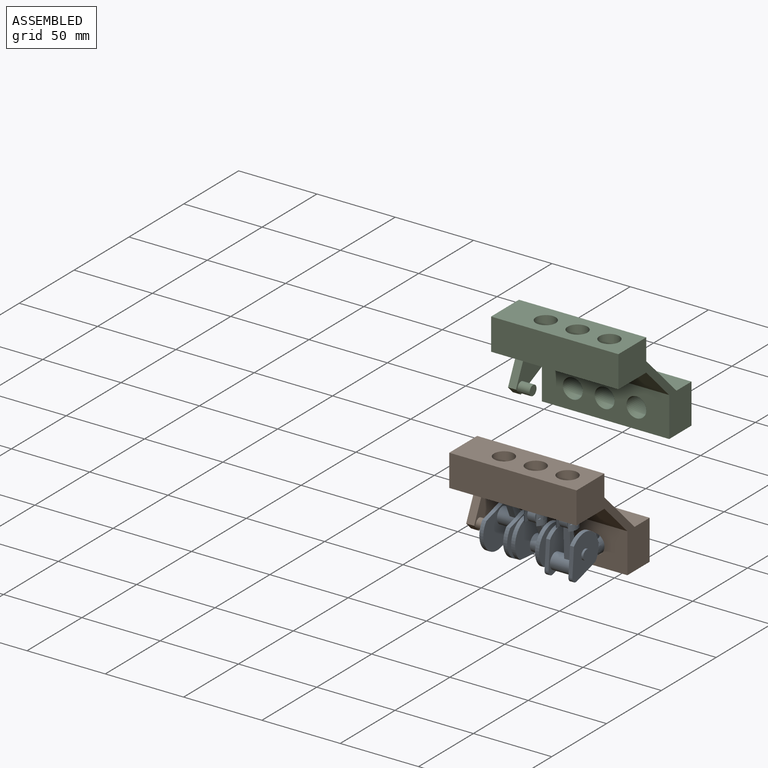
[diagram: assembled view]
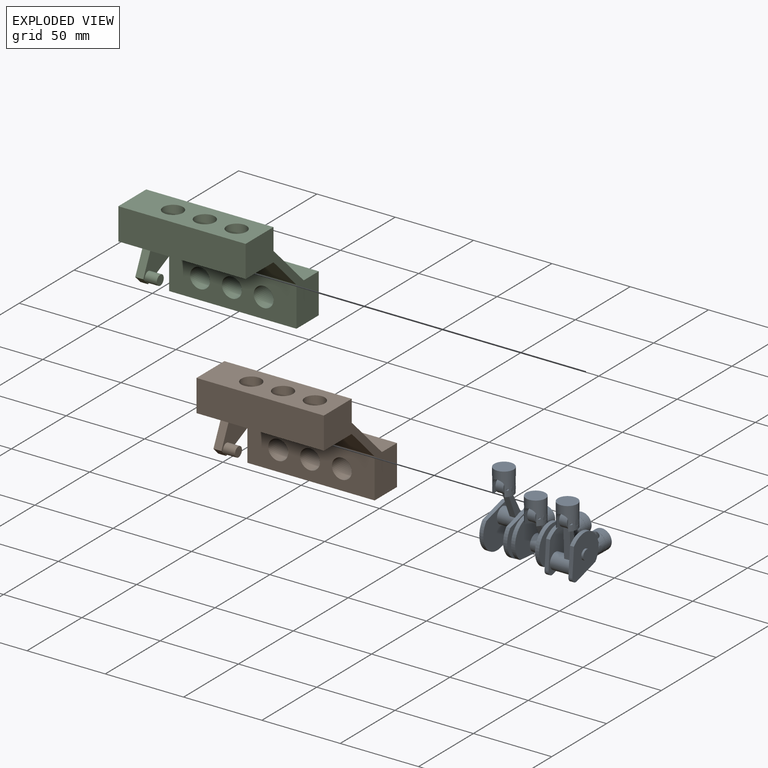
[diagram: exploded view]
GUIDED TOUR — MATED ASSEMBLY WITH SUBASSEMBLIES (Onshape document 8149db686804dba860535233, AutoMate assembly 8149db686804dba860535233_c2453fa3158c593c69a147f7_6c1d80d9578c346a1d70da86_default)

This assembly has 26 component occurrences arranged in 3 top-level units: 2 individual components plus 1 subassembly (S0). The tour has two levels: first the top level, where each subassembly is treated as one rigid unit; then each subassembly is toured internally in its own section (nesting deeper than one subassembly level is flattened into its subassembly's section).

Components are labeled P0..P25 across the whole record; subassembly units are labeled S0..S0. A mate is a constraint between two units; its type names the relative motion it leaves free:
  CYLINDRICAL — leaves both rotation about and translation along the listed axis free,
  FASTENED — locks the two components together rigidly (no relative motion),
  REVOLUTE — leaves rotation about the listed axis free (a hinge),
  SLIDER — leaves translation along the listed axis free.
Axis/direction vectors are unit vectors and 'through' points are millimeter coordinates, both in the assembly's world frame.

TOP-LEVEL MATES (between units; each subassembly's internal mates are listed in its own section)
  1. CYLINDRICAL "Cylindrical 1": P7 <-> S0, axis (1.000, 0.000, 0.000) through (-11.14, -75.00, -70.00) mm
  2. SLIDER "Slider 5": S0 <-> P7, axis (0.000, -1.000, 0.000) through (16.11, -31.24, -77.07) mm
  3. SLIDER "Slider 6": S0 <-> P7, axis (0.000, -1.000, 0.000) through (36.43, -46.98, -77.07) mm
  4. SLIDER "Slider 4": S0 <-> P7, axis (0.000, -1.000, 0.000) through (-4.21, -40.53, -77.07) mm
  5. SLIDER "Slider 1": S0 <-> P7, axis (0.000, 0.000, 1.000) through (42.78, -82.34, -38.03) mm
  6. SLIDER "Slider 2": S0 <-> P7, axis (0.000, 0.000, -1.000) through (22.46, -82.34, -40.29) mm
  7. SLIDER "Slider 3": S0 <-> P7, axis (0.000, 0.000, 1.000) through (2.14, -82.34, -29.02) mm

TOP-LEVEL ASSEMBLY ORDER
  1. S0 — the base component [order heuristic]
  2. P7 — core [order heuristic]
  3. P17 [order verified]
Order-tag legend:
  [order verified] — this step's position reverses a verified removal order: the component was checked to insert without passing through the ones already placed.
  [order heuristic] — the first 2 components form the assembly's core: parts whose collision-free extraction could not be verified, listed in mate-graph order.

Of the 26 component occurrences, 14 carry the full construction recipe — the FeatureScript program that regenerates the part's solid from scratch; the rest are supplied as boundary geometry only. Each toured unit is shown spotlighted twice — assembled, then exploded with a leader line back to its socket (green = recipe-attached component, orange = geometry-only, blue = subassembly unit; the rest desaturated gray).
NOTE — this tour is split across 2 documents so each fits a 32k-token context. This is document 1: the component sections continue in the remaining 1 document, each repeating the header above.
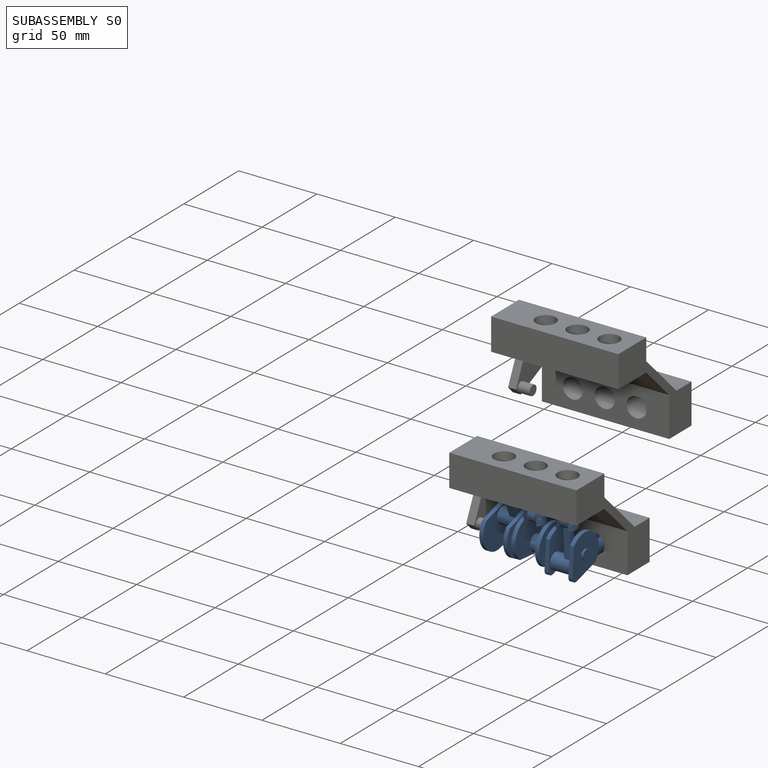
[diagram: subassembly S0 — assembled]
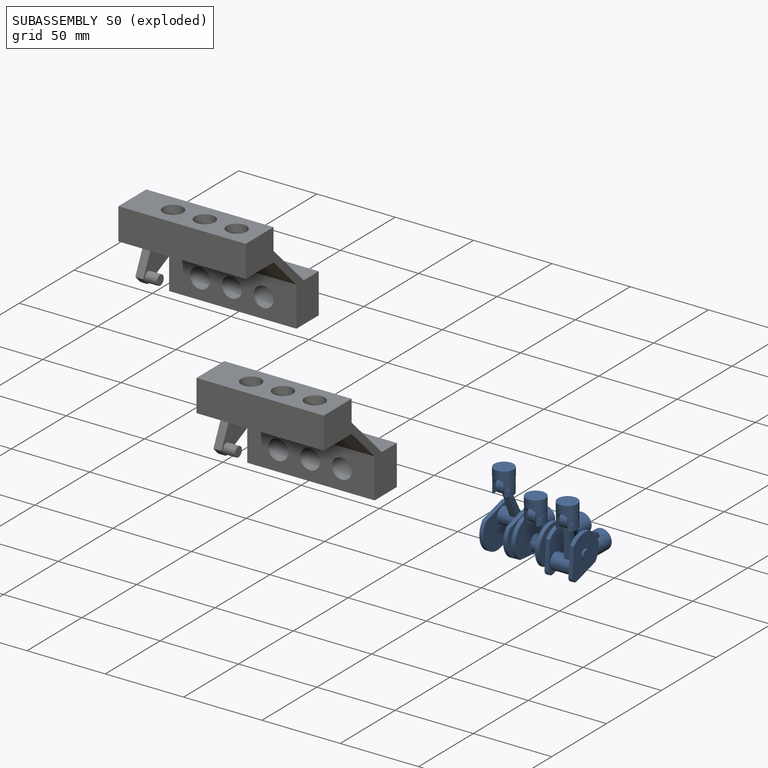
[diagram: subassembly S0 — exploded]
SUBASSEMBLY S0 — 24 components (P0, P1, P2, P3, P4, P5, P6, P8, P9, P10, P11, P12, P13, P14, P15, P16, P18, P19, P20, P21, P22, P23, P24, P25), of which 12 recipe-attached; toured below.
Held by: CYLINDRICAL mate "Cylindrical 1" to P7; SLIDER mate "Slider 5" to P7; SLIDER mate "Slider 6" to P7; SLIDER mate "Slider 4" to P7; SLIDER mate "Slider 1" to P7; SLIDER mate "Slider 2" to P7; SLIDER mate "Slider 3" to P7.
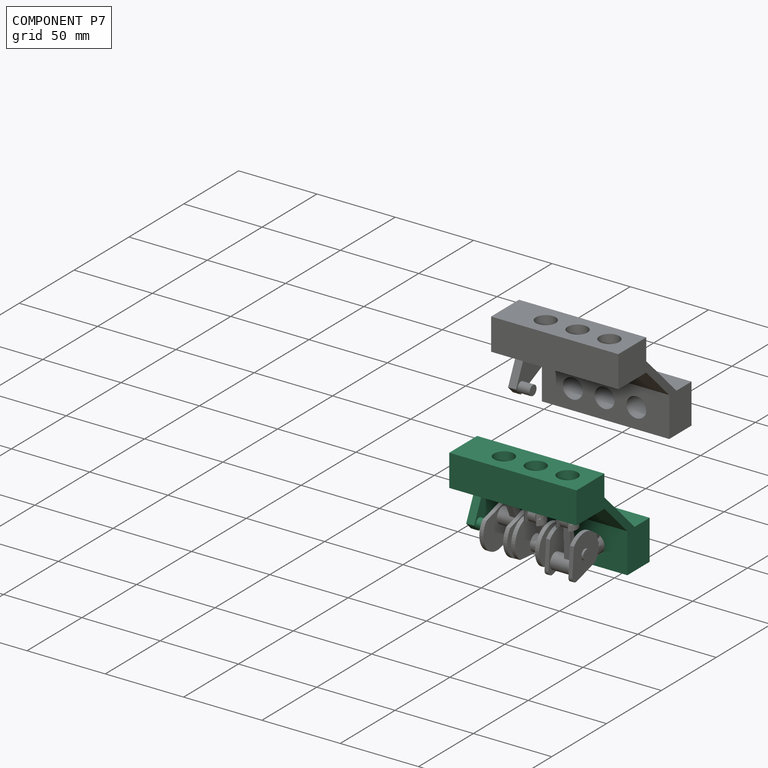
[diagram: component P7 — assembled]
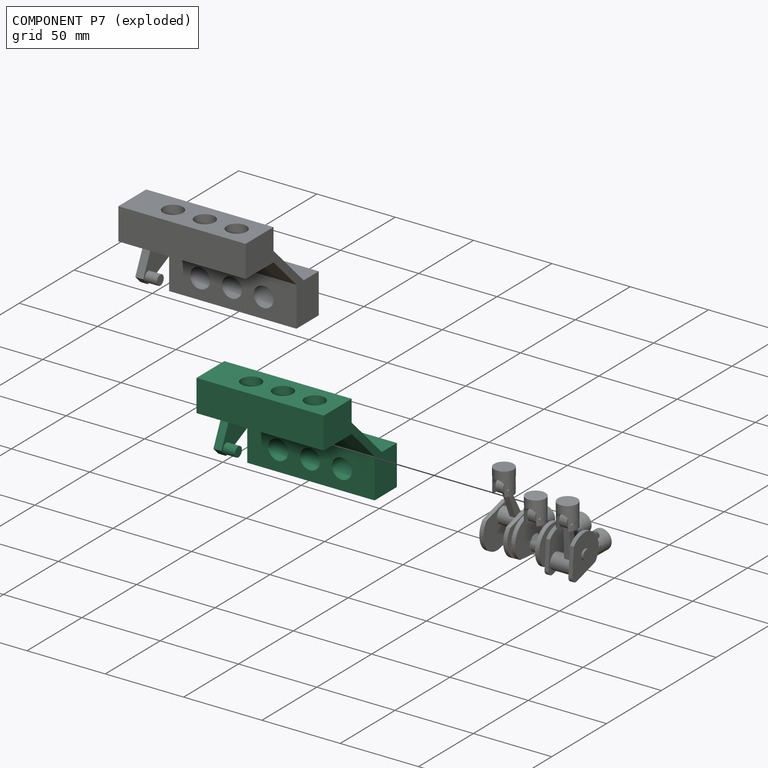
[diagram: component P7 — exploded]
COMPONENT P7 — recipe-attached (CADFS 00725550, mesh-verified: the recipe's output STEP matches this component's geometry to below the mesh-comparison resolution (tessellation chordal tolerance ~0.187 mm)).
Held by: CYLINDRICAL mate "Cylindrical 1" to P0; SLIDER mate "Slider 5" to P0; SLIDER mate "Slider 6" to P0; SLIDER mate "Slider 4" to P0; SLIDER mate "Slider 1" to P0; SLIDER mate "Slider 2" to P0; SLIDER mate "Slider 3" to P0.
Construction recipe (FeatureScript — the CAD program that rebuilds this solid; sketch coordinates are in the units given by the * unit suffixes, e.g. mm):

FeatureScript 1511;
import(path : "onshape/std/geometry.fs", version : "1511.0");
import(path : "onshape/std/common.fs", version : "1511.0");
const mm = millimeter;
const VERTEX = EntityType.VERTEX;
const EDGE = EntityType.EDGE;
const FACE = EntityType.FACE;
const BODY = EntityType.BODY;
function v(x, y){return vector(x, y);}
function OD(order){return orderDisambiguation(order);}
function OSD(set){return originalSetDisambiguation(set);}
function TD(topology){return topologyDisambiguation(topology);}
function TDD(query){return trueDependencyDisambiguation(query);}
function sQuery(a, b, c) {return sketchEntityQuery(a, b, c);}

annotation { "Feature Type Name" : "Feature", "Feature Type Description" : "" }
export const myFeature = defineFeature(function(context is Context, id is Id, definition is map)
    precondition{}
    {
        {
            var Q0;
            Q0=qCreatedBy(makeId("Front.planeOp"),FACE);
            var sketch = newSketch(context, id + "F0", { "sketchPlane" : qUnion([Q0])});
            skLineSegment(sketch, "E0.bottom", {"start": v(-38.1, 0) * mm, "end": v(38.1, 0) * mm});
            skLineSegment(sketch, "E0.top", {"start": v(-38.1, 25.4) * mm, "end": v(38.1, 25.4) * mm});
            skLineSegment(sketch, "E0.left", {"start": v(-38.1, 0) * mm, "end": v(-38.1, 25.4) * mm});
            skLineSegment(sketch, "E0.right", {"start": v(38.1, 0) * mm, "end": v(38.1, 25.4) * mm});
            skPoint(sketch, "E0.middle", {"position": v(0, 12.7) * mm});
            skSolve(sketch);
        }
        {
            var Q0;
            Q0=makeQuery(id+"F0.imprint","IMPRINT",FACE,{"disambiguationData":[TD([[makeQuery(id+"F0.imprint","IMPRINT",EDGE,{"derivedFrom":sQuery(id+"F0.wireOp",EDGE,"E0.bottom")}),1.0]])]});
            extrude(context, id + "F1", {"entities" : qUnion([Q0]), "depth" : 25.4 * mm, "offsetDistance" : 25.4 * mm});
        }
        {
            var Q0;
            Q0=makeQuery(id+"F1.opExtrude","SWEPT_FACE",FACE,{"disambiguationData":[OSD([sQuery(id+"F0.wireOp",EDGE,"E0.bottom")])]});
            var sketch = newSketch(context, id + "F2", { "sketchPlane" : qUnion([Q0])});
            skCircle(sketch, "E1", {"center": v(3.18, 12.7) * mm, "radius": 6.35 * mm});
            skCircle(sketch, "E2", {"center": v(23.5, 12.7) * mm, "radius": 6.35 * mm});
            skCircle(sketch, "E3", {"center": v(-17.15, 12.7) * mm, "radius": 6.35 * mm});
            skSolve(sketch);
        }
        {
            var Q0;
            Q0=makeQuery(id+"F2.imprint","IMPRINT",FACE,{"disambiguationData":[TD([[makeQuery(id+"F2.imprint","IMPRINT",EDGE,{"derivedFrom":sQuery(id+"F2.wireOp",EDGE,"E3")}),1.0]])]});
            var Q1;
            Q1=makeQuery(id+"F2.imprint","IMPRINT",FACE,{"disambiguationData":[TD([[makeQuery(id+"F2.imprint","IMPRINT",EDGE,{"derivedFrom":sQuery(id+"F2.wireOp",EDGE,"E1")}),1.0]])]});
            var Q2;
            Q2=makeQuery(id+"F2.imprint","IMPRINT",FACE,{"disambiguationData":[TD([[makeQuery(id+"F2.imprint","IMPRINT",EDGE,{"derivedFrom":sQuery(id+"F2.wireOp",EDGE,"E2")}),1.0]])]});
            extrude(context, id + "F3", {"entities" : qUnion([Q0, Q1, Q2]), "operationType" : NewBodyOperationType.REMOVE, "oppositeDirection" : true, "depth" : 25.4 * mm, "offsetDistance" : 25.4 * mm});
        }
        {
            var Q0;
            Q0=qCreatedBy(makeId("Right.planeOp"),FACE);
            var sketch = newSketch(context, id + "F4", { "sketchPlane" : qUnion([Q0])});
            skLineSegment(sketch, "E4", {"start": v(0, 25.45) * mm, "end": v(-64.3, -38.85) * mm});
            skLineSegment(sketch, "E5", {"start": v(0, 0) * mm, "end": v(-48.66, -48.66) * mm});
            skLineSegment(sketch, "E6", {"start": v(20.95, 0) * mm, "end": v(-40.19, -61.14) * mm});
            skSolve(sketch);
        }
        {
            var Q0;
            Q0=sQuery(id+"F4.wireOp",EDGE,"E6");
            cPlane(context, id + "F5", {"entities" : qUnion([Q0]), "cplaneType" : CPlaneType.LINE_ANGLE, "offset" : 25.4 * mm, "angle" : 0 * degree, "width" : 152.4 * mm, "height" : 152.4 * mm});
        }
        {
            var Q0;
            Q0=makeQuery(id+"F1.opExtrude","SWEPT_BODY",BODY,{"disambiguationData":[OSD([sQuery(id+"F0.wireOp",EDGE,"E0.bottom"),sQuery(id+"F0.wireOp",EDGE,"E0.top"),sQuery(id+"F0.wireOp",EDGE,"E0.left"),sQuery(id+"F0.wireOp",EDGE,"E0.right")])]});
            var Q1;
            Q1=sQuery(id+"F4.wireOp",EDGE,"E6");
            circularPattern(context, id + "F6", {"entities" : qUnion([Q0]), "axis" : qUnion([Q1]), "angle" : 360 * degree, "instanceCount" : 2, "equalSpace" : true});
        }
        {
            var Q0;
            Q0=qCreatedBy(id+"F5.planeOp",FACE);
            var sketch = newSketch(context, id + "F7", { "sketchPlane" : qUnion([Q0])});
            skLineSegment(sketch, "E7", {"start": v(-38.1, 0) * mm, "end": v(38.1, 0) * mm});
            skLineSegment(sketch, "E8", {"start": v(38.1, 0) * mm, "end": v(38.1, 4.66) * mm});
            skLineSegment(sketch, "E9", {"start": v(38.1, 4.66) * mm, "end": v(-38.1, 4.66) * mm});
            skLineSegment(sketch, "E10", {"start": v(-38.1, 4.66) * mm, "end": v(-38.1, 0) * mm});
            skSolve(sketch);
        }
        {
            var Q0;
            Q0=makeQuery(id+"F7.imprint","IMPRINT",FACE,{"disambiguationData":[TD([[makeQuery(id+"F7.imprint","IMPRINT",EDGE,{"derivedFrom":sQuery(id+"F7.wireOp",EDGE,"E7")}),1.0]])]});
            extrude(context, id + "F8", {"entities" : qUnion([Q0]), "endBound" : BoundingType.SYMMETRIC, "depth" : 44.7 * mm, "offsetDistance" : 25.4 * mm});
        }
        {
            var Q0;
            Q0=makeQuery(id+"F6.opPattern","COPY",BODY,{"derivedFrom":makeQuery(id+"F1.opExtrude","SWEPT_BODY",BODY,{"disambiguationData":[OSD([sQuery(id+"F0.wireOp",EDGE,"E0.bottom"),sQuery(id+"F0.wireOp",EDGE,"E0.top"),sQuery(id+"F0.wireOp",EDGE,"E0.left"),sQuery(id+"F0.wireOp",EDGE,"E0.right")])]}),"instanceName":"1"});
            var Q1;
            Q1=makeQuery(id+"F8.opExtrude","SWEPT_BODY",BODY,{"disambiguationData":[OSD([sQuery(id+"F7.wireOp",EDGE,"E7"),sQuery(id+"F7.wireOp",EDGE,"E8"),sQuery(id+"F7.wireOp",EDGE,"E9"),sQuery(id+"F7.wireOp",EDGE,"E10")])]});
            var Q2;
            Q2=makeQuery(id+"F1.opExtrude","SWEPT_BODY",BODY,{"disambiguationData":[OSD([sQuery(id+"F0.wireOp",EDGE,"E0.bottom"),sQuery(id+"F0.wireOp",EDGE,"E0.top"),sQuery(id+"F0.wireOp",EDGE,"E0.left"),sQuery(id+"F0.wireOp",EDGE,"E0.right")])]});
            booleanBodies(context, id + "F9", {"operationType" : BooleanOperationType.UNION, "tools" : qUnion([Q0, Q1, Q2])});
        }
        {
            var Q0;
            Q0=makeQuery(id+"F9.opBoolean","MERGE",FACE,{"derivedFrom":[makeQuery(id+"F1.opExtrude","SWEPT_FACE",FACE,{"disambiguationData":[OSD([sQuery(id+"F0.wireOp",EDGE,"E0.left")])]}),makeQuery(id+"F6.opPattern","COPY",FACE,{"derivedFrom":makeQuery(id+"F1.opExtrude","SWEPT_FACE",FACE,{"disambiguationData":[OSD([sQuery(id+"F0.wireOp",EDGE,"E0.right")])]}),"instanceName":"1"}),makeQuery(id+"F8.opExtrude","SWEPT_FACE",FACE,{"disambiguationData":[OSD([sQuery(id+"F7.wireOp",EDGE,"E8")])]})]});
            extrude(context, id + "F10", {"entities" : qUnion([Q0]), "operationType" : NewBodyOperationType.ADD, "depth" : 5.08 * mm, "offsetDistance" : 25.4 * mm});
        }
        {
            var Q0;
            Q0=makeQuery(id+"F10.opExtrude","CAP_FACE",FACE,{"disambiguationData":[OSD([sQuery(id+"F0.wireOp",EDGE,"E0.left"),sQuery(id+"F0.wireOp",EDGE,"E0.right"),sQuery(id+"F7.wireOp",EDGE,"E8")])],"isStart":false});
            var sketch = newSketch(context, id + "F11", { "sketchPlane" : qUnion([Q0])});
            skLineSegment(sketch, "E11", {"start": v(0, 0) * mm, "end": v(-20.95, -20.95) * mm});
            skLineSegment(sketch, "E12", {"start": v(9.97, -26.43) * mm, "end": v(5.5, -30.95) * mm});
            skLineSegment(sketch, "E13", {"start": v(9.97, -26.43) * mm, "end": v(-1.5, -1.5) * mm});
            skLineSegment(sketch, "E14", {"start": v(-1.5, -1.5) * mm, "end": v(-19.46, -19.46) * mm});
            skLineSegment(sketch, "E15", {"start": v(-19.46, -19.46) * mm, "end": v(5.5, -30.95) * mm});
            skSolve(sketch);
        }
        {
            var Q0;
            Q0=makeQuery(id+"F11.imprint","IMPRINT",FACE,{"disambiguationData":[TD([[makeQuery(id+"F11.imprint","IMPRINT",EDGE,{"derivedFrom":sQuery(id+"F11.wireOp",EDGE,"E12")}),-1.0]])]});
            extrude(context, id + "F12", {"entities" : qUnion([Q0]), "operationType" : NewBodyOperationType.ADD, "oppositeDirection" : true, "depth" : 5.08 * mm, "offsetDistance" : 25.4 * mm});
        }
        {
            var Q0;
            Q0=makeQuery(id+"F12.opExtrude","CAP_FACE",FACE,{"disambiguationData":[OSD([sQuery(id+"F11.wireOp",EDGE,"E12"),sQuery(id+"F11.wireOp",EDGE,"E13"),sQuery(id+"F11.wireOp",EDGE,"E14"),sQuery(id+"F11.wireOp",EDGE,"E15")])],"isStart":false});
            var sketch = newSketch(context, id + "F13", { "sketchPlane" : qUnion([Q0])});
            skCircle(sketch, "E16", {"center": v(-5.36, -26.58) * mm, "radius": 3.18 * mm});
            skSolve(sketch);
        }
        {
            var Q0;
            Q0=makeQuery(id+"F13.imprint","IMPRINT",FACE,{"disambiguationData":[TD([[makeQuery(id+"F13.imprint","IMPRINT",EDGE,{"derivedFrom":sQuery(id+"F13.wireOp",EDGE,"E16")}),1.0]])]});
            extrude(context, id + "F14", {"entities" : qUnion([Q0]), "operationType" : NewBodyOperationType.ADD, "depth" : 7.67 * mm, "offsetDistance" : 25.4 * mm});
        }
        {
            var Q0;
            {var subQ0=sQuery(id+"F0.wireOp",EDGE,"E0.top");Q0=makeQuery(id+"F10.boolean.opBoolean","MERGE",FACE,{"derivedFrom":[makeQuery(id+"F1.opExtrude","SWEPT_FACE",FACE,{"disambiguationData":[OSD([subQ0])]}),makeQuery(id+"F10.opExtrude","SWEPT_FACE",FACE,{"disambiguationData":[OSD([subQ0,sQuery(id+"F0.wireOp",EDGE,"E0.left")])]})]});}
            var sketch = newSketch(context, id + "F15", { "sketchPlane" : qUnion([Q0])});
            skPoint(sketch, "E17.0", {"position": v(-43.18, -25.4) * mm});
            skPoint(sketch, "E18.0", {"position": v(38.1, 0) * mm});
            skLineSegment(sketch, "E19.bottom", {"start": v(-43.18, -25.4) * mm, "end": v(38.1, -25.4) * mm});
            skLineSegment(sketch, "E19.top", {"start": v(-43.18, 0) * mm, "end": v(38.1, 0) * mm});
            skLineSegment(sketch, "E19.left", {"start": v(-43.18, -25.4) * mm, "end": v(-43.18, 0) * mm});
            skLineSegment(sketch, "E19.right", {"start": v(38.1, -25.4) * mm, "end": v(38.1, 0) * mm});
            skSolve(sketch);
        }
        {
            var Q0;
            Q0=makeQuery(id+"F15.imprint","IMPRINT",FACE,{"disambiguationData":[TD([[makeQuery(id+"F15.imprint","IMPRINT",EDGE,{"derivedFrom":sQuery(id+"F15.wireOp",EDGE,"E19.bottom")}),1.0]])]});
            extrude(context, id + "F16", {"entities" : qUnion([Q0]), "operationType" : NewBodyOperationType.REMOVE, "oppositeDirection" : true, "depth" : 5.08 * mm, "offsetDistance" : 25.4 * mm});
        }
        {
            var Q0;
            {var subQ0=sQuery(id+"F0.wireOp",EDGE,"E0.top");Q0=makeQuery(id+"F10.boolean.opBoolean","MERGE",FACE,{"derivedFrom":[makeQuery(id+"F6.opPattern","COPY",FACE,{"derivedFrom":makeQuery(id+"F1.opExtrude","SWEPT_FACE",FACE,{"disambiguationData":[OSD([subQ0])]}),"instanceName":"1"}),makeQuery(id+"F10.opExtrude","SWEPT_FACE",FACE,{"disambiguationData":[OSD([subQ0,sQuery(id+"F0.wireOp",EDGE,"E0.right")])]})]});}
            var sketch = newSketch(context, id + "F17", { "sketchPlane" : qUnion([Q0])});
            skPoint(sketch, "E20.0", {"position": v(-38.1, -20.95) * mm});
            skPoint(sketch, "E21.0", {"position": v(43.18, -46.35) * mm});
            skLineSegment(sketch, "E22.bottom", {"start": v(-38.1, -20.95) * mm, "end": v(43.18, -20.95) * mm});
            skLineSegment(sketch, "E22.top", {"start": v(-38.1, -46.35) * mm, "end": v(43.18, -46.35) * mm});
            skLineSegment(sketch, "E22.left", {"start": v(-38.1, -20.95) * mm, "end": v(-38.1, -46.35) * mm});
            skLineSegment(sketch, "E22.right", {"start": v(43.18, -20.95) * mm, "end": v(43.18, -46.35) * mm});
            skSolve(sketch);
        }
        {
            var Q0;
            Q0=makeQuery(id+"F17.imprint","IMPRINT",FACE,{"disambiguationData":[TD([[makeQuery(id+"F17.imprint","IMPRINT",EDGE,{"derivedFrom":sQuery(id+"F17.wireOp",EDGE,"E22.bottom")}),-1.0]])]});
            extrude(context, id + "F18", {"entities" : qUnion([Q0]), "operationType" : NewBodyOperationType.REMOVE, "oppositeDirection" : true, "depth" : 5.08 * mm, "offsetDistance" : 25.4 * mm});
        }
    });
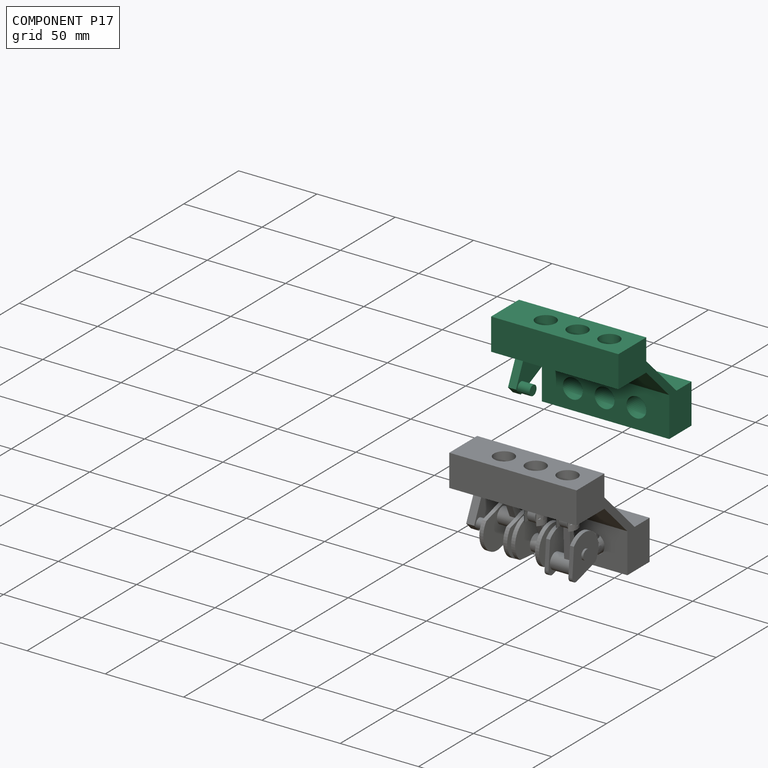
[diagram: component P17 — assembled]
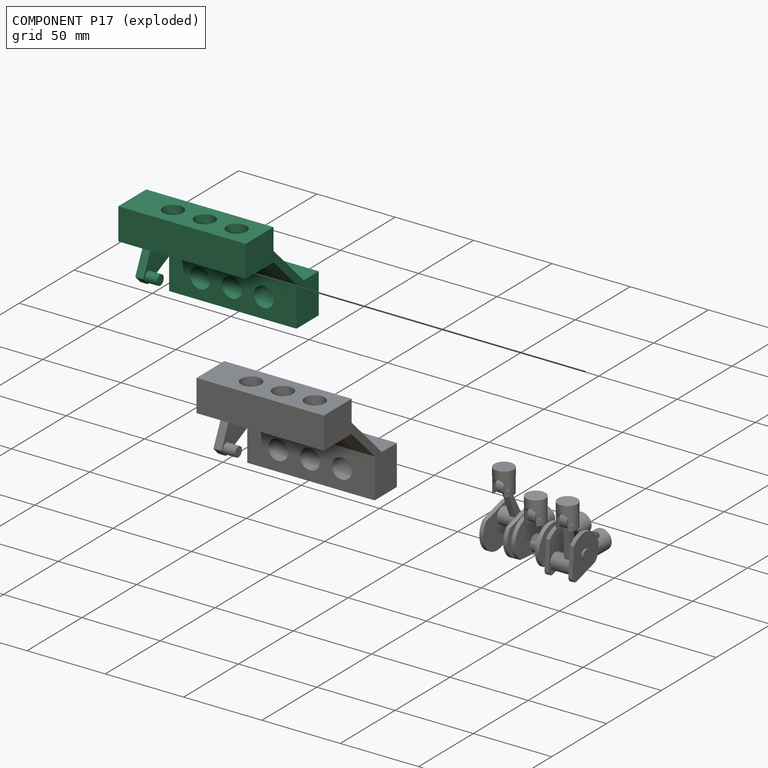
[diagram: component P17 — exploded]
COMPONENT P17 — same part as P7 (CADFS 00725550); its construction recipe is shown at P7.
Held by: no mates (free).
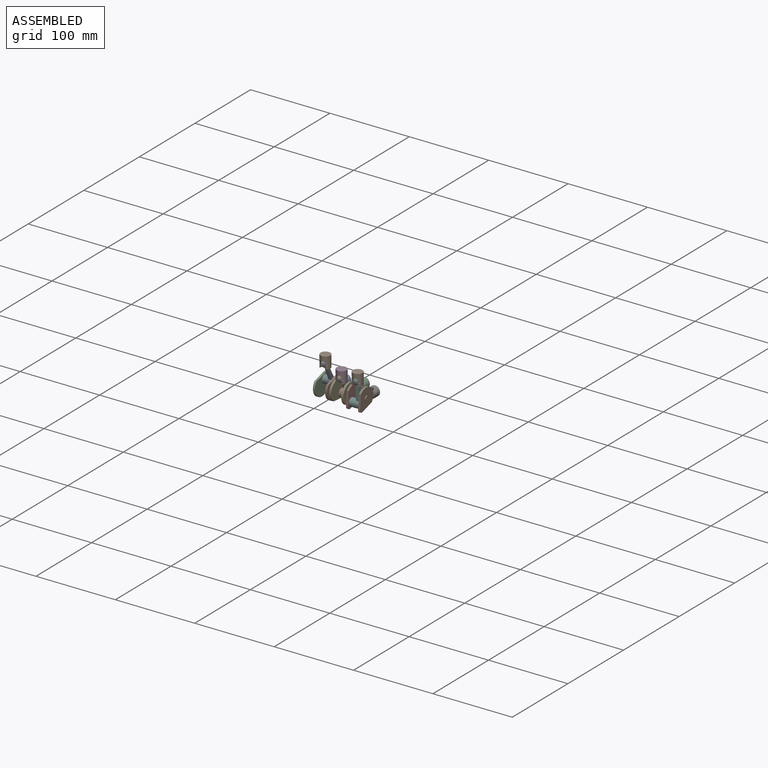
[diagram: subassembly S0 — assembled view]
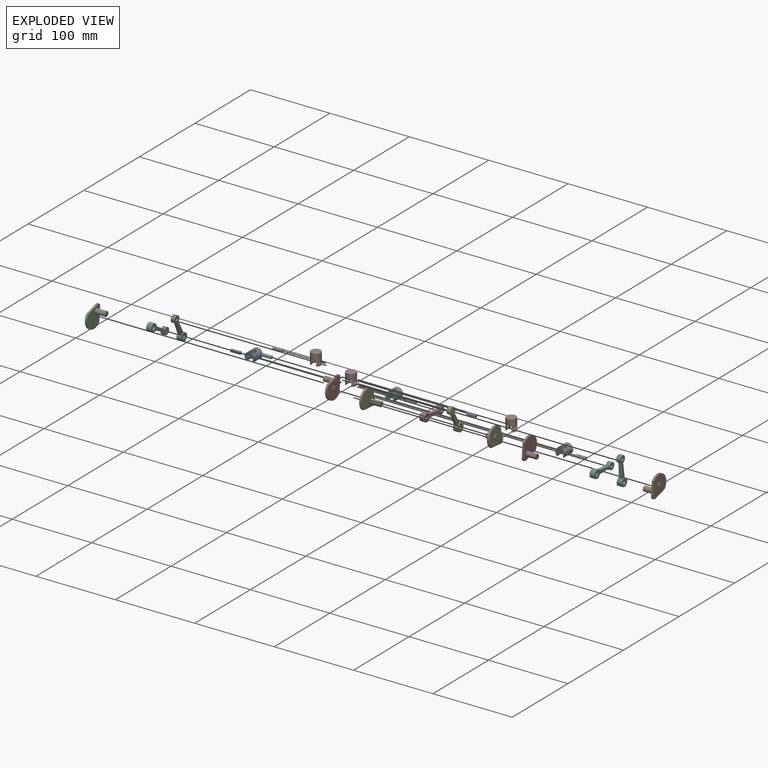
[diagram: subassembly S0 — exploded view]
SUBASSEMBLY S0 TOUR — 24 components, shown here in isolation at its own camera.

INTERNAL MATES
  1. REVOLUTE "Revolute 1": P5 <-> P0, axis (-1.000, 0.000, 0.000) through (42.82, -82.34, -48.69) mm
  2. FASTENED "Fastened 5": P1 <-> P25, direction (-1.000, 0.000, 0.000) through (33.30, -79.84, -75.88) mm
  3. FASTENED "Fastened 1": P12 <-> P6, direction (1.000, 0.000, 0.000) through (28.62, -82.34, -50.96) mm
  4. FASTENED "Fastened 2": P4 <-> P22, direction (1.000, 0.000, 0.000) through (25.68, -69.12, -74.85) mm
  5. FASTENED "Fastened 1": P9 <-> P3, direction (1.000, 0.000, 0.000) through (1.95, -46.12, -77.07) mm
  6. FASTENED "Fastened 1": P2 <-> P21, direction (1.000, 0.000, 0.000) through (22.27, -41.90, -77.07) mm
  7. REVOLUTE "Revolute 5": P18 <-> P16, axis (1.000, 0.000, 0.000) through (5.36, -70.16, -64.12) mm
  8. REVOLUTE "Revolute 1": P14 <-> P3, axis (-1.000, 0.000, 0.000) through (-4.17, -46.12, -77.07) mm
  9. REVOLUTE "Revolute 3": P8 <-> P4, axis (-1.000, 0.000, 0.000) through (12.98, -69.12, -74.85) mm
  10. REVOLUTE "Revolute 1": P18 <-> P15, axis (-1.000, 0.000, 0.000) through (2.18, -82.34, -39.68) mm
  11. FASTENED "Fastened 1": P10 <-> P0, direction (1.000, 0.000, 0.000) through (48.94, -82.34, -48.69) mm
  12. FASTENED "Fastened 1": P22 <-> P25, direction (1.000, 0.000, 0.000) through (29.49, -75.00, -70.00) mm
  13. FASTENED "Fastened 1": P24 <-> P11, direction (1.000, 0.000, 0.000) through (42.59, -52.56, -77.07) mm
  14. FASTENED "Fastened 4": P20 <-> P16, direction (-1.000, 0.000, 0.000) through (5.36, -70.16, -64.12) mm
  15. REVOLUTE "Revolute 1": P23 <-> P11, axis (-1.000, 0.000, 0.000) through (36.47, -52.56, -77.07) mm
  16. REVOLUTE "Revolute 1": P8 <-> P21, axis (-1.000, 0.000, 0.000) through (16.15, -41.90, -77.07) mm
  17. REVOLUTE "Revolute 6": P14 <-> P16, axis (-1.000, 0.000, 0.000) through (-7.34, -70.16, -64.12) mm
  18. FASTENED "Fastened 3": P16 <-> P4, direction (1.000, 0.000, 0.000) through (9.17, -75.00, -70.00) mm
  19. REVOLUTE "Revolute 4": P13 <-> P22, axis (1.000, 0.000, 0.000) through (25.68, -69.12, -74.85) mm
  20. REVOLUTE "Revolute 1": P23 <-> P25, axis (-1.000, 0.000, 0.000) through (33.30, -79.84, -75.88) mm
  21. REVOLUTE "Revolute 1": P13 <-> P6, axis (-1.000, 0.000, 0.000) through (22.50, -82.34, -50.96) mm
  22. FASTENED "Fastened 1": P19 <-> P15, direction (1.000, 0.000, 0.000) through (8.30, -82.34, -39.68) mm
  23. REVOLUTE "Revolute 2": P5 <-> P25, axis (1.000, 0.000, 0.000) through (46.00, -79.84, -75.88) mm
  24. FASTENED "Fastened 3": P16 <-> P4, direction (1.000, 0.000, 0.000) through (9.17, -75.00, -70.00) mm
  25. REVOLUTE "Revolute 4": P13 <-> P22, axis (1.000, 0.000, 0.000) through (25.68, -69.12, -74.85) mm
  26. FASTENED "Fastened 1": P19 <-> P15, direction (1.000, 0.000, 0.000) through (8.30, -82.34, -39.68) mm
  27. FASTENED "Fastened 2": P4 <-> P22, direction (1.000, 0.000, 0.000) through (25.68, -69.12, -74.85) mm
  28. FASTENED "Fastened 1": P9 <-> P3, direction (1.000, 0.000, 0.000) through (1.95, -46.12, -77.07) mm
  29. REVOLUTE "Revolute 2": P5 <-> P25, axis (1.000, 0.000, 0.000) through (46.00, -79.84, -75.88) mm
  30. REVOLUTE "Revolute 1": P8 <-> P21, axis (-1.000, 0.000, 0.000) through (16.15, -41.90, -77.07) mm
  31. REVOLUTE "Revolute 1": P23 <-> P11, axis (-1.000, 0.000, 0.000) through (36.47, -52.56, -77.07) mm
  32. FASTENED "Fastened 1": P2 <-> P21, direction (1.000, 0.000, 0.000) through (22.27, -41.90, -77.07) mm
  33. FASTENED "Fastened 4": P20 <-> P16, direction (-1.000, 0.000, 0.000) through (5.36, -70.16, -64.12) mm
  34. FASTENED "Fastened 5": P1 <-> P25, direction (-1.000, 0.000, 0.000) through (33.30, -79.84, -75.88) mm
  35. FASTENED "Fastened 1": P12 <-> P6, direction (1.000, 0.000, 0.000) through (28.62, -82.34, -50.96) mm
  36. FASTENED "Fastened 1": P24 <-> P11, direction (1.000, 0.000, 0.000) through (42.59, -52.56, -77.07) mm
  37. REVOLUTE "Revolute 3": P8 <-> P4, axis (-1.000, 0.000, 0.000) through (12.98, -69.12, -74.85) mm
  38. REVOLUTE "Revolute 1": P13 <-> P6, axis (-1.000, 0.000, 0.000) through (22.50, -82.34, -50.96) mm
  39. FASTENED "Fastened 1": P22 <-> P25, direction (1.000, 0.000, 0.000) through (29.49, -75.00, -70.00) mm
  40. REVOLUTE "Revolute 1": P18 <-> P15, axis (-1.000, 0.000, 0.000) through (2.18, -82.34, -39.68) mm
  41. REVOLUTE "Revolute 1": P14 <-> P3, axis (-1.000, 0.000, 0.000) through (-4.17, -46.12, -77.07) mm
  42. FASTENED "Fastened 1": P10 <-> P0, direction (1.000, 0.000, 0.000) through (48.94, -82.34, -48.69) mm
  43. REVOLUTE "Revolute 6": P14 <-> P16, axis (-1.000, 0.000, 0.000) through (-7.34, -70.16, -64.12) mm
  44. REVOLUTE "Revolute 1": P23 <-> P25, axis (-1.000, 0.000, 0.000) through (33.30, -79.84, -75.88) mm
  45. REVOLUTE "Revolute 5": P18 <-> P16, axis (1.000, 0.000, 0.000) through (5.36, -70.16, -64.12) mm
  46. REVOLUTE "Revolute 1": P5 <-> P0, axis (-1.000, 0.000, 0.000) through (42.82, -82.34, -48.69) mm

ASSEMBLY ORDER (within the subassembly)
  1. P16 — the base component [order heuristic]
  2. P18 — core [order heuristic]
  3. P19 [order verified]
  4. P4 — core [order heuristic]
  5. P14 — core [order heuristic]
  6. P3 — core [order heuristic]
  7. P9 — core [order heuristic]
  8. P2 — core [order heuristic]
  9. P21 — core [order heuristic]
  10. P8 — core [order heuristic]
  11. P20 — core [order heuristic]
  12. P12 [order verified]
  13. P13 — core [order heuristic]
  14. P22 — core [order heuristic]
  15. P25 — core [order heuristic]
  16. P24 — core [order heuristic]
  17. P11 — core [order heuristic]
  18. P23 — core [order heuristic]
  19. P10 — core [order heuristic]
  20. P0 — core [order heuristic]
  21. P5 — core [order heuristic]
  22. P6 [order verified]
  23. P1 — core [order heuristic]
  24. P15 [order verified]
Order-tag legend:
  [order verified] — this step's position reverses a verified removal order: the component was checked to insert without passing through the ones already placed.
  [order heuristic] — the first 20 components form the assembly's core: parts whose collision-free extraction could not be verified, listed in mate-graph order.
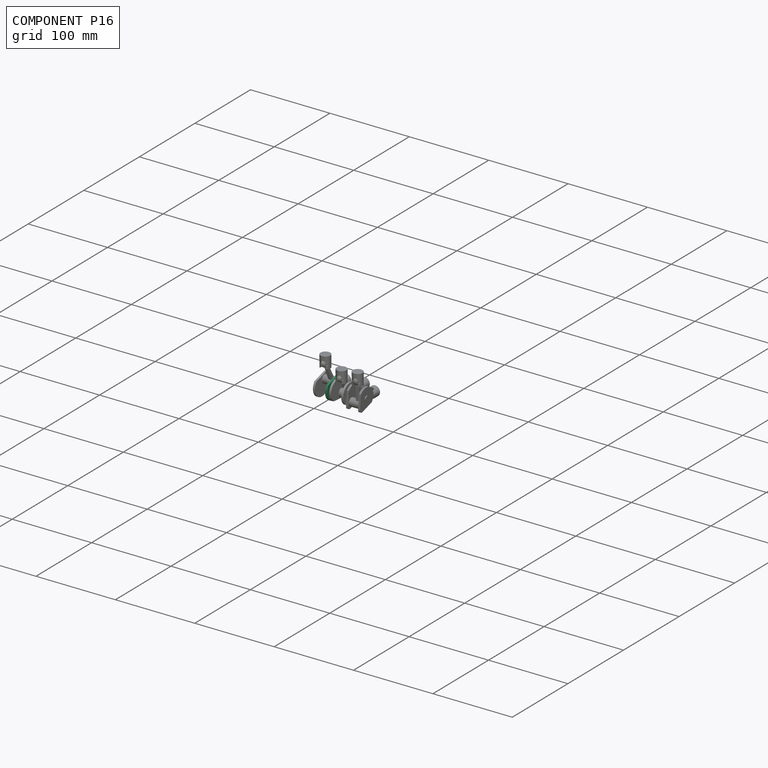
[diagram: component P16 — assembled]
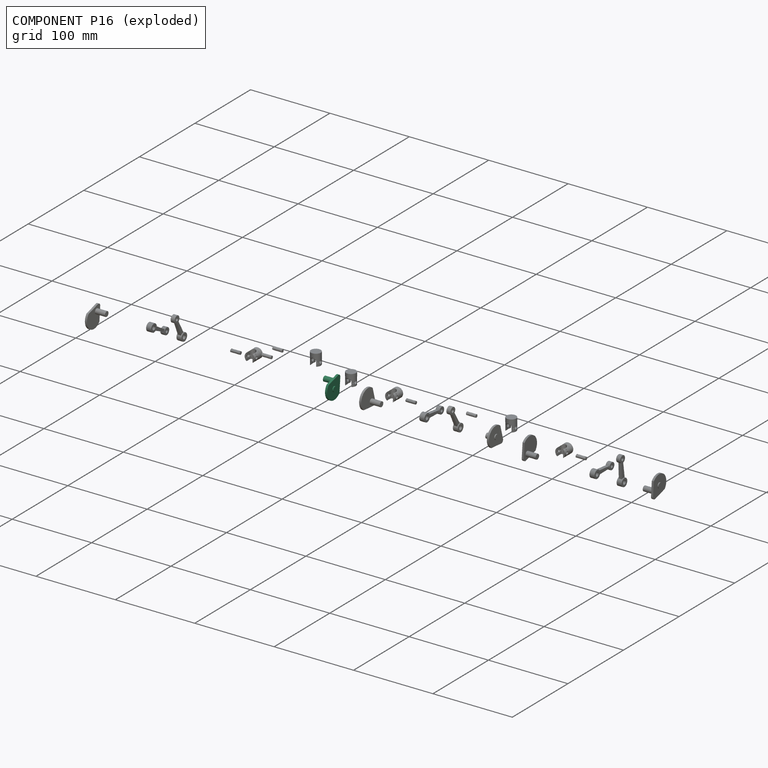
[diagram: component P16 — exploded]
COMPONENT P16 — same part as P1 (CADFS 00725554); its construction recipe is shown at P1.
Held by: REVOLUTE mate "Revolute 5" to P18; FASTENED mate "Fastened 4" to P20; REVOLUTE mate "Revolute 6" to P14; FASTENED mate "Fastened 3" to P4; FASTENED mate "Fastened 3" to P4; FASTENED mate "Fastened 4" to P20; REVOLUTE mate "Revolute 6" to P14; REVOLUTE mate "Revolute 5" to P18.
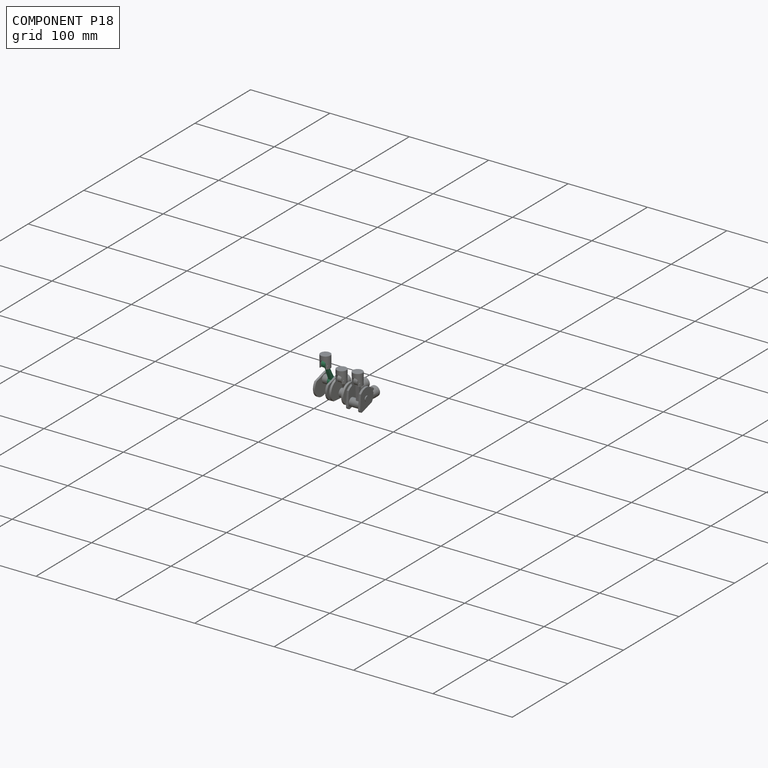
[diagram: component P18 — assembled]
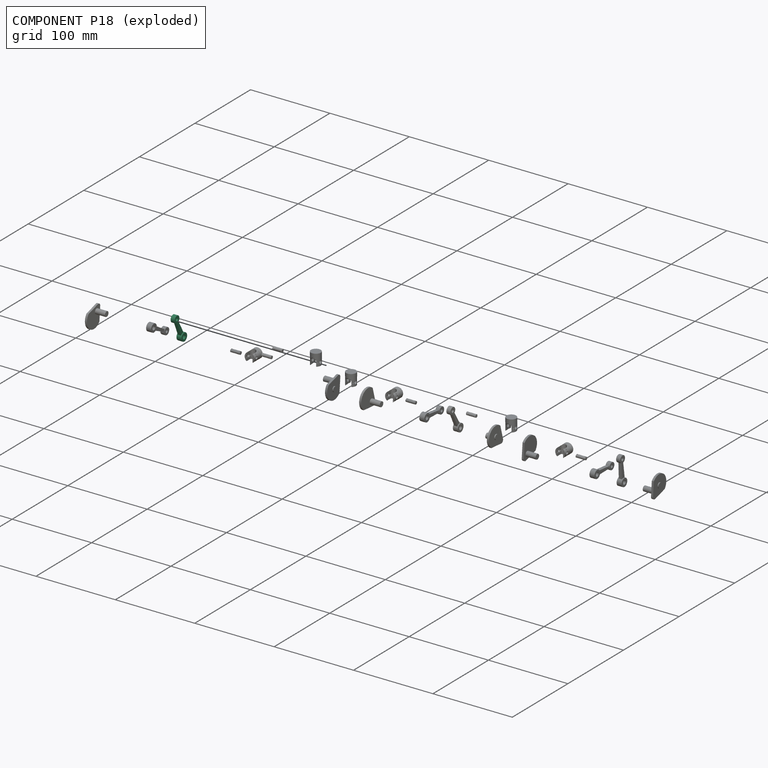
[diagram: component P18 — exploded]
COMPONENT P18 — same part as P5 (CADFS 00725549); its construction recipe is shown at P5.
Held by: REVOLUTE mate "Revolute 5" to P16; REVOLUTE mate "Revolute 1" to P15; REVOLUTE mate "Revolute 1" to P15; REVOLUTE mate "Revolute 5" to P16.
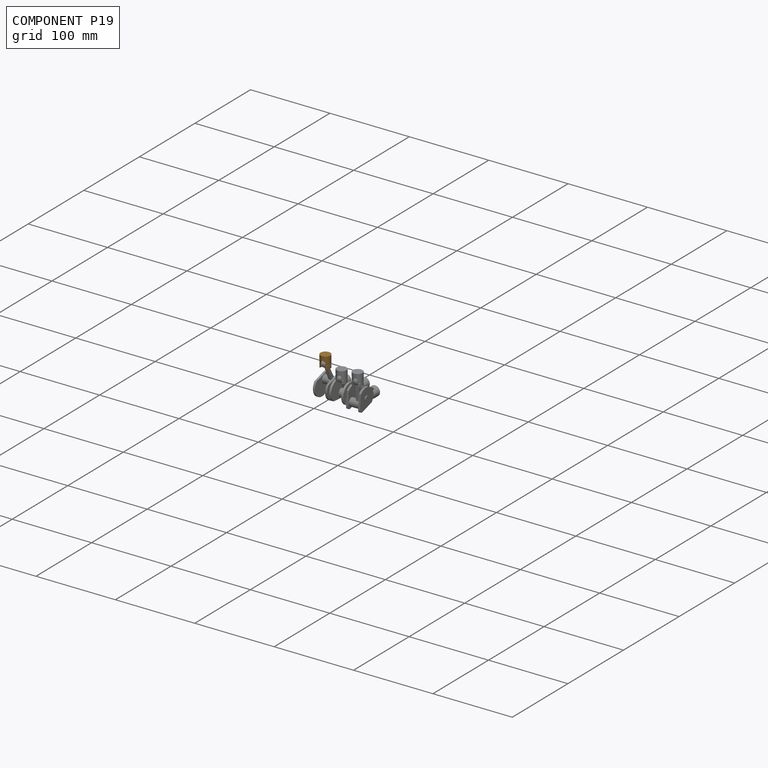
[diagram: component P19 — assembled]
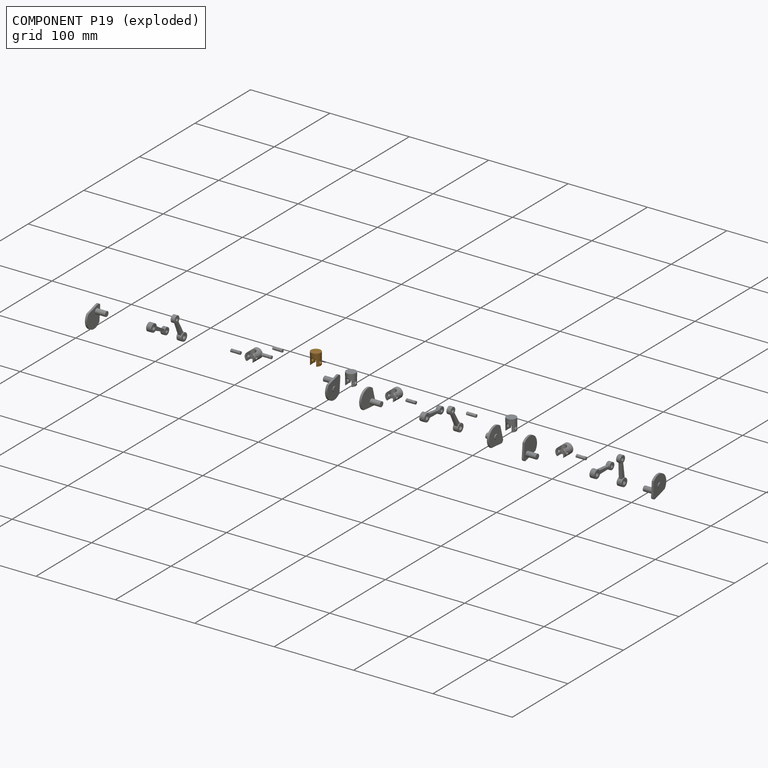
[diagram: component P19 — exploded]
COMPONENT P19 — geometry summary (no construction recipe available for this part):
  bounding box: 15.0 x 12.6 x 12.6 mm
  B-rep topology: 1 solid, 24 faces, 132 edges
  volume: 944 mm^3 (40% of its bounding box)
  symmetry: 2-fold rotationally symmetric about the z axis; mirror-symmetric across its x mid-plane, y mid-plane
Held by: FASTENED mate "Fastened 1" to P15; FASTENED mate "Fastened 1" to P15.
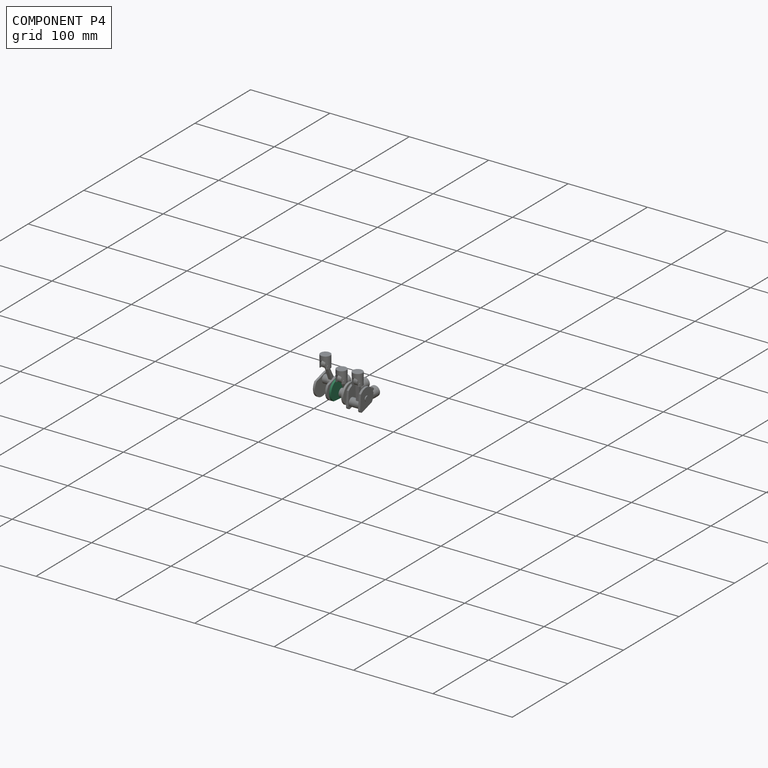
[diagram: component P4 — assembled]
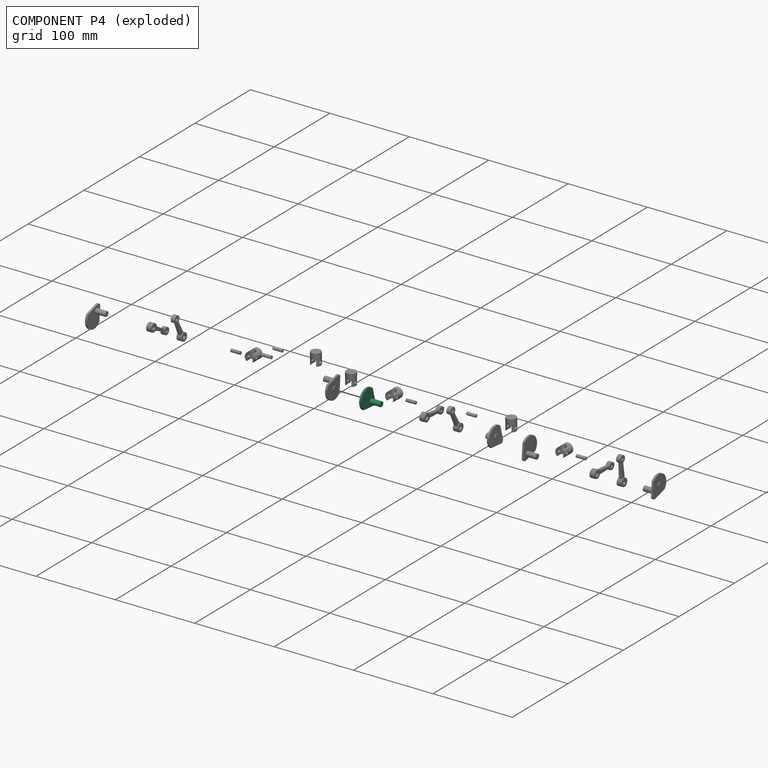
[diagram: component P4 — exploded]
COMPONENT P4 — same part as P1 (CADFS 00725554); its construction recipe is shown at P1.
Held by: FASTENED mate "Fastened 2" to P22; REVOLUTE mate "Revolute 3" to P8; FASTENED mate "Fastened 3" to P16; FASTENED mate "Fastened 3" to P16; FASTENED mate "Fastened 2" to P22; REVOLUTE mate "Revolute 3" to P8.
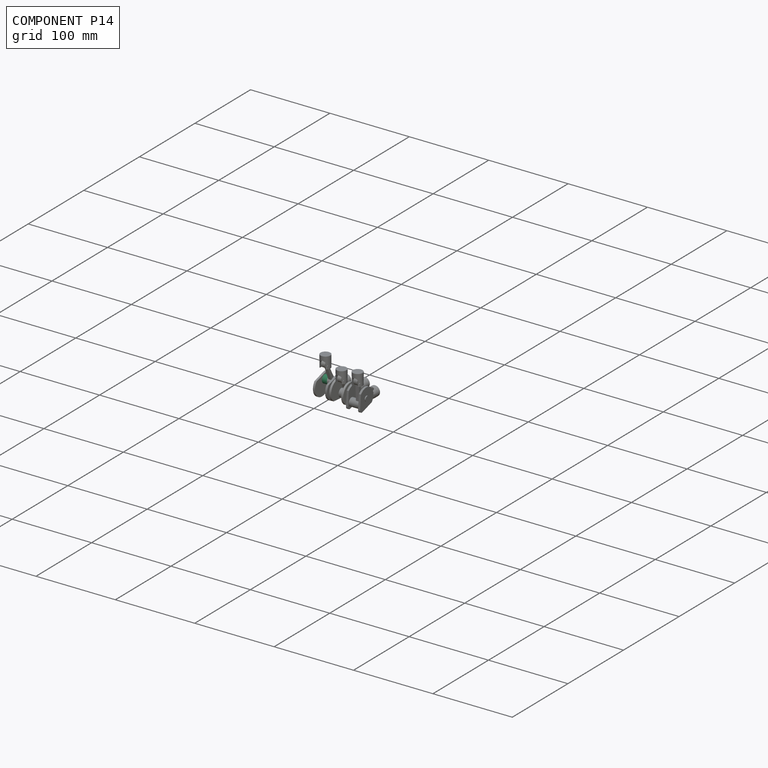
[diagram: component P14 — assembled]
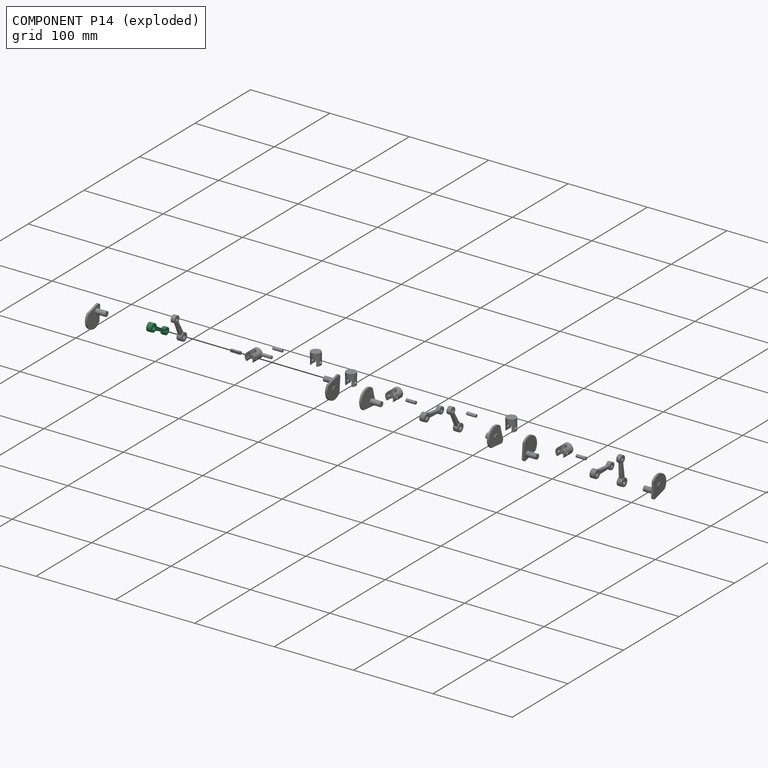
[diagram: component P14 — exploded]
COMPONENT P14 — same part as P5 (CADFS 00725549); its construction recipe is shown at P5.
Held by: REVOLUTE mate "Revolute 1" to P3; REVOLUTE mate "Revolute 6" to P16; REVOLUTE mate "Revolute 1" to P3; REVOLUTE mate "Revolute 6" to P16.
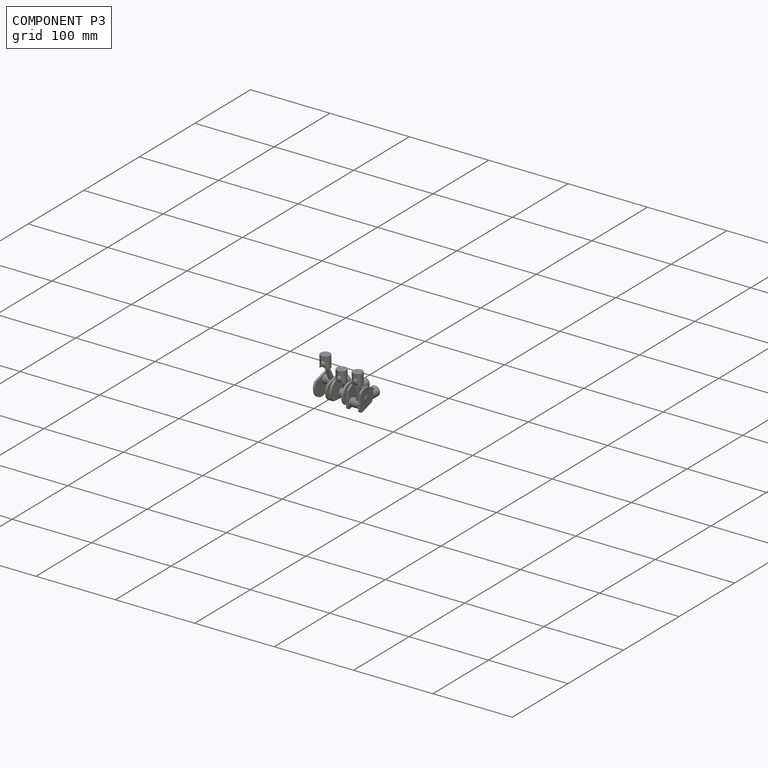
[diagram: component P3 — assembled]
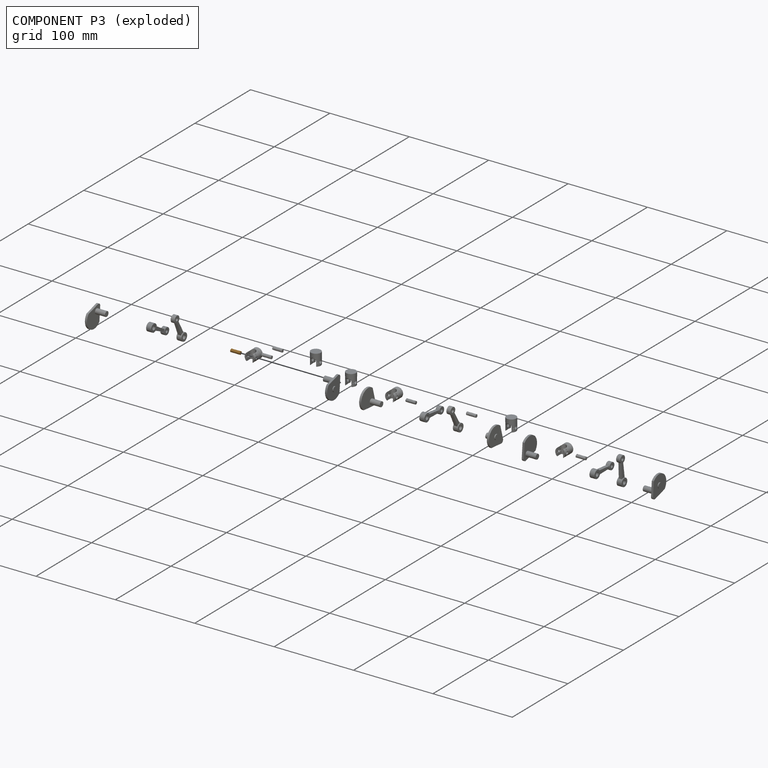
[diagram: component P3 — exploded]
COMPONENT P3 — geometry summary (no construction recipe available for this part):
  bounding box: 12.1 x 3.8 x 3.8 mm
  B-rep topology: 1 solid, 5 faces, 18 edges
  volume: 129 mm^3 (75% of its bounding box)
  symmetry: 2-fold rotationally symmetric about the x axis; 2-fold rotationally symmetric about the y axis; 2-fold rotationally symmetric about the z axis; mirror-symmetric across its x mid-plane, y mid-plane, z mid-plane
Held by: FASTENED mate "Fastened 1" to P9; REVOLUTE mate "Revolute 1" to P14; FASTENED mate "Fastened 1" to P9; REVOLUTE mate "Revolute 1" to P14.
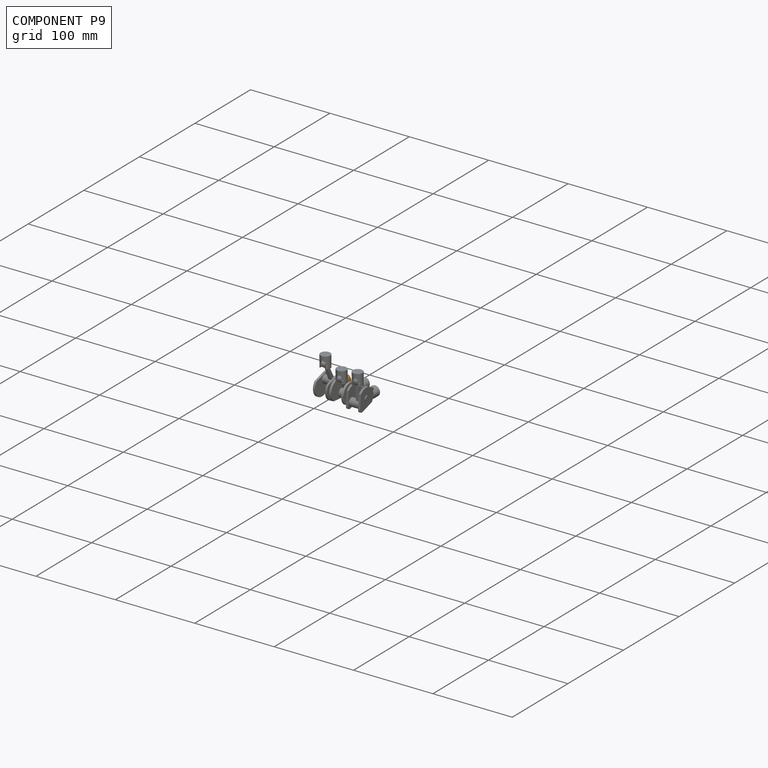
[diagram: component P9 — assembled]
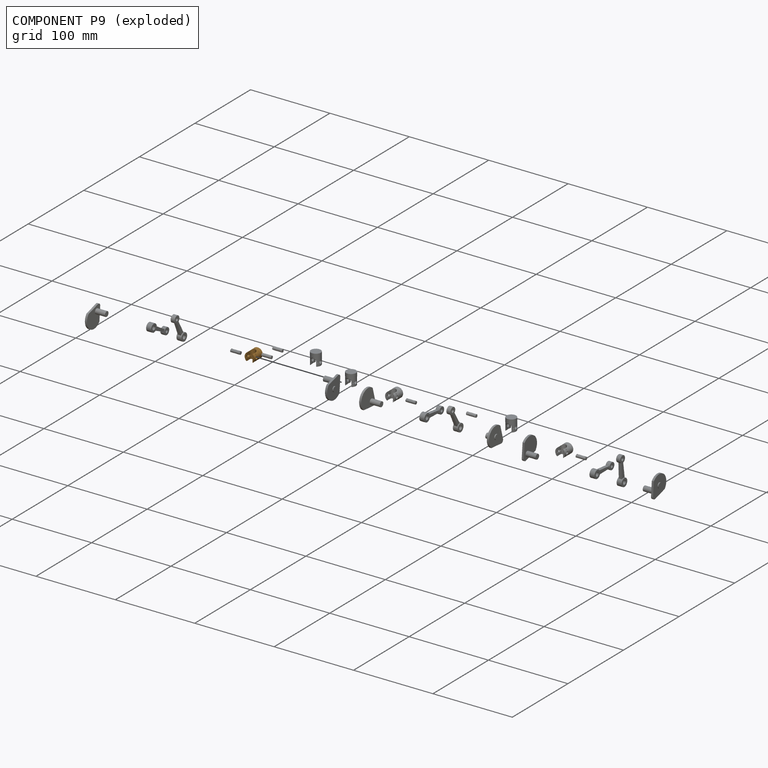
[diagram: component P9 — exploded]
COMPONENT P9 — geometry summary (no construction recipe available for this part):
  bounding box: 15.0 x 12.6 x 12.6 mm
  B-rep topology: 1 solid, 24 faces, 132 edges
  volume: 944 mm^3 (40% of its bounding box)
  symmetry: 2-fold rotationally symmetric about the z axis; mirror-symmetric across its x mid-plane, y mid-plane
Held by: FASTENED mate "Fastened 1" to P3; FASTENED mate "Fastened 1" to P3.
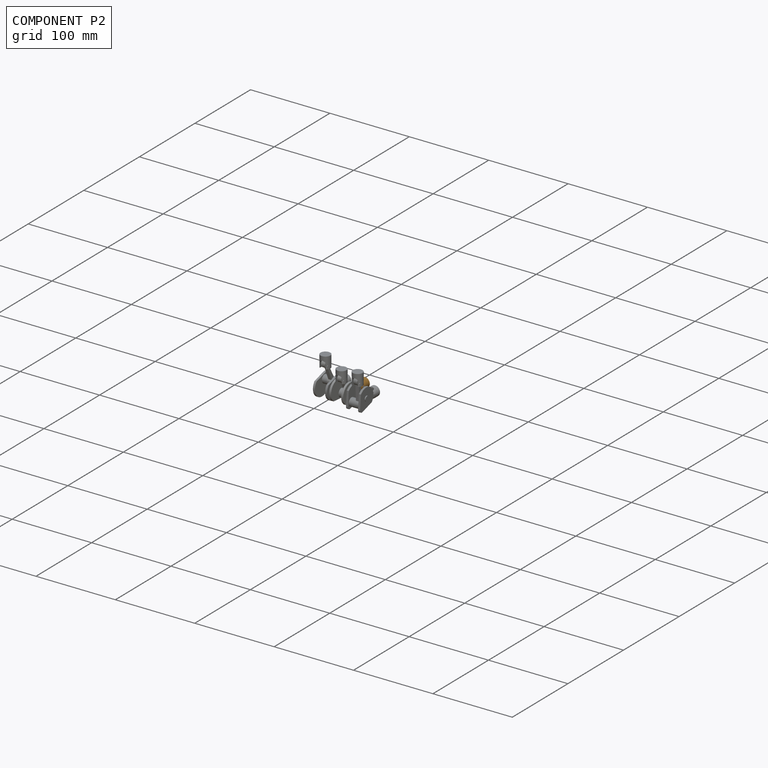
[diagram: component P2 — assembled]
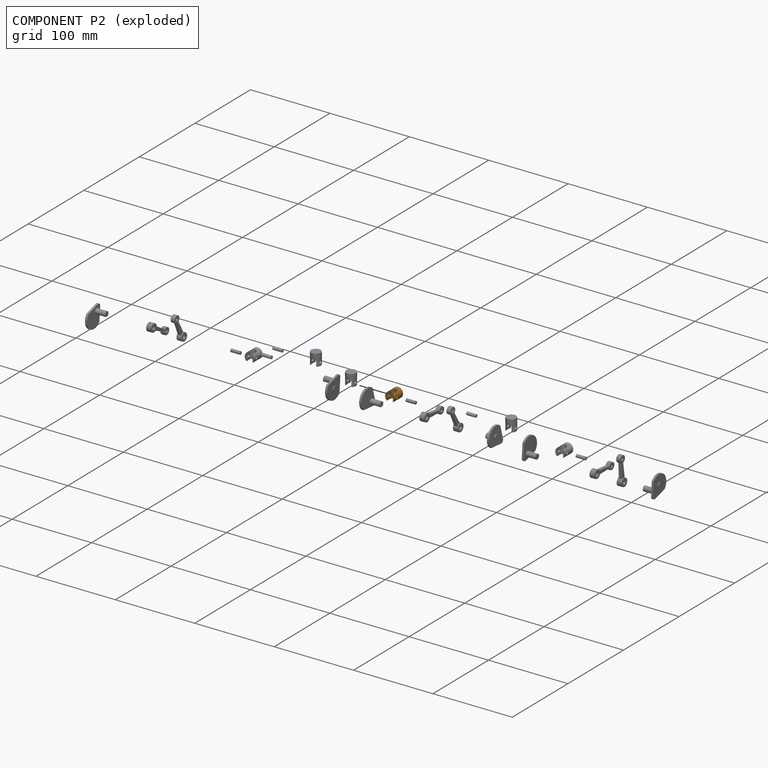
[diagram: component P2 — exploded]
COMPONENT P2 — geometry summary (no construction recipe available for this part):
  bounding box: 15.0 x 12.6 x 12.6 mm
  B-rep topology: 1 solid, 24 faces, 132 edges
  volume: 944 mm^3 (40% of its bounding box)
  symmetry: 2-fold rotationally symmetric about the z axis; mirror-symmetric across its x mid-plane, y mid-plane
Held by: FASTENED mate "Fastened 1" to P21; FASTENED mate "Fastened 1" to P21.
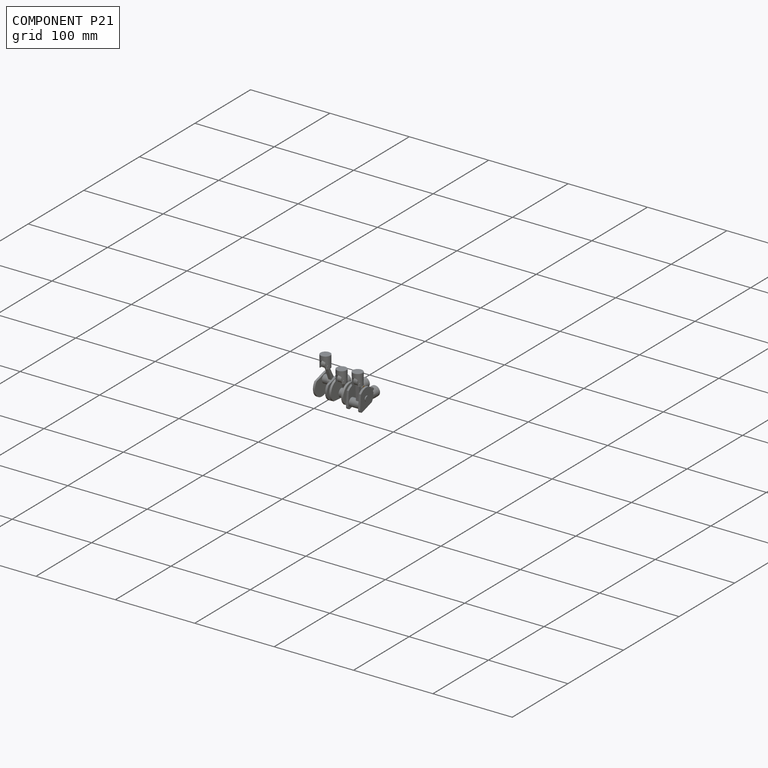
[diagram: component P21 — assembled]
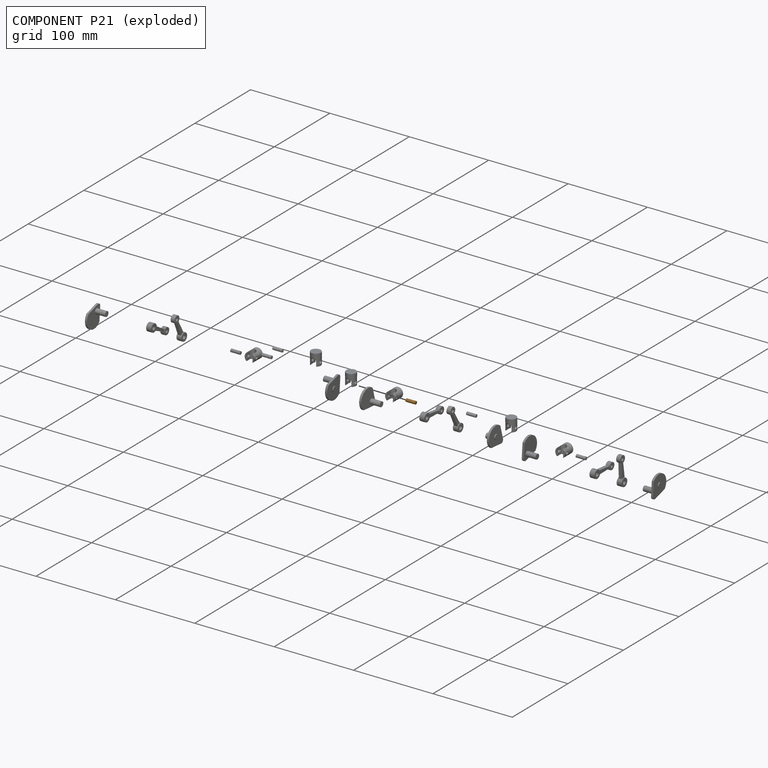
[diagram: component P21 — exploded]
COMPONENT P21 — geometry summary (no construction recipe available for this part):
  bounding box: 12.1 x 3.8 x 3.8 mm
  B-rep topology: 1 solid, 5 faces, 18 edges
  volume: 129 mm^3 (75% of its bounding box)
  symmetry: 2-fold rotationally symmetric about the x axis; 2-fold rotationally symmetric about the y axis; 2-fold rotationally symmetric about the z axis; mirror-symmetric across its x mid-plane, y mid-plane, z mid-plane
Held by: FASTENED mate "Fastened 1" to P2; REVOLUTE mate "Revolute 1" to P8; REVOLUTE mate "Revolute 1" to P8; FASTENED mate "Fastened 1" to P2.
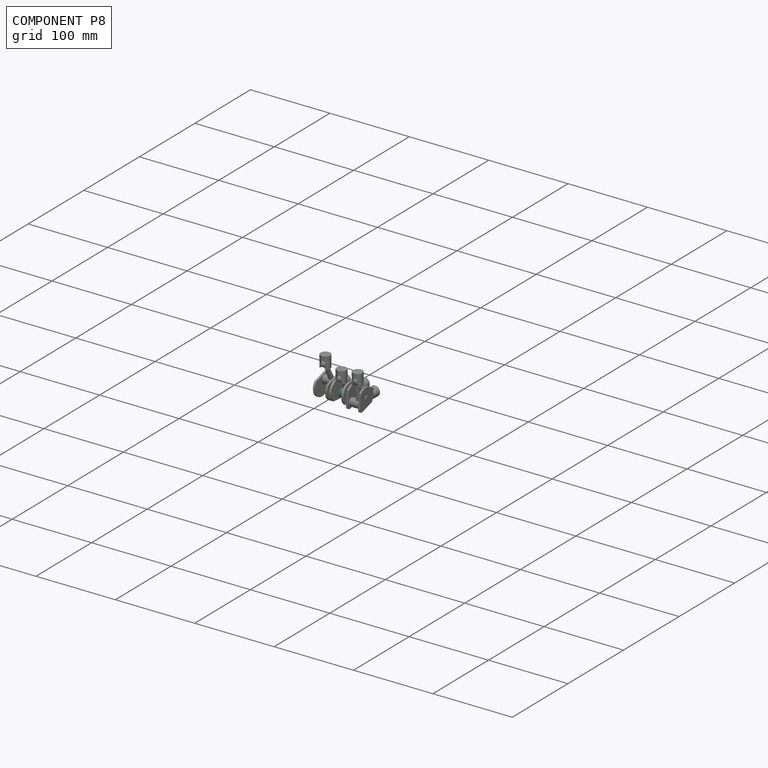
[diagram: component P8 — assembled]
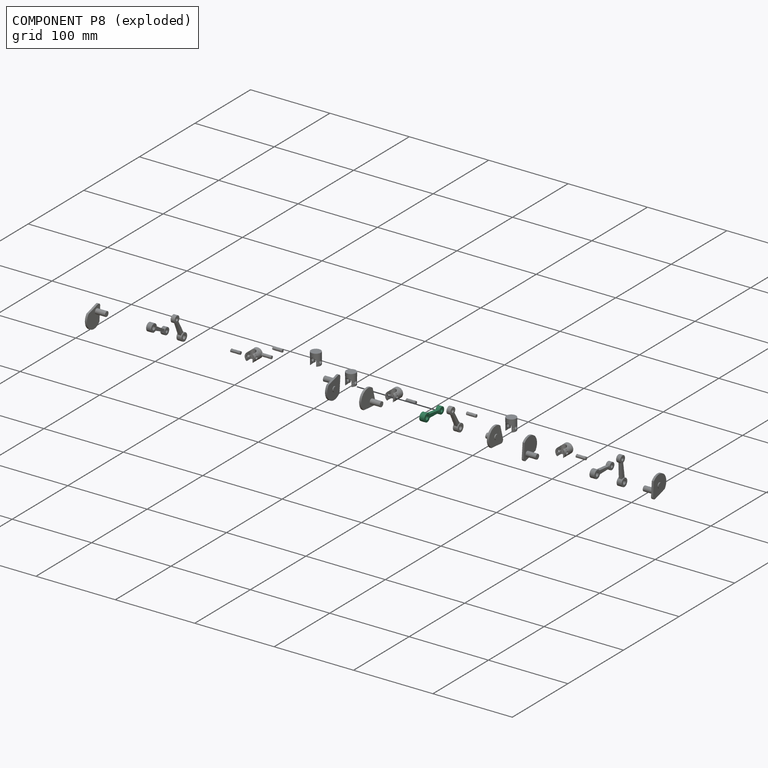
[diagram: component P8 — exploded]
COMPONENT P8 — same part as P5 (CADFS 00725549); its construction recipe is shown at P5.
Held by: REVOLUTE mate "Revolute 3" to P4; REVOLUTE mate "Revolute 1" to P21; REVOLUTE mate "Revolute 1" to P21; REVOLUTE mate "Revolute 3" to P4.
